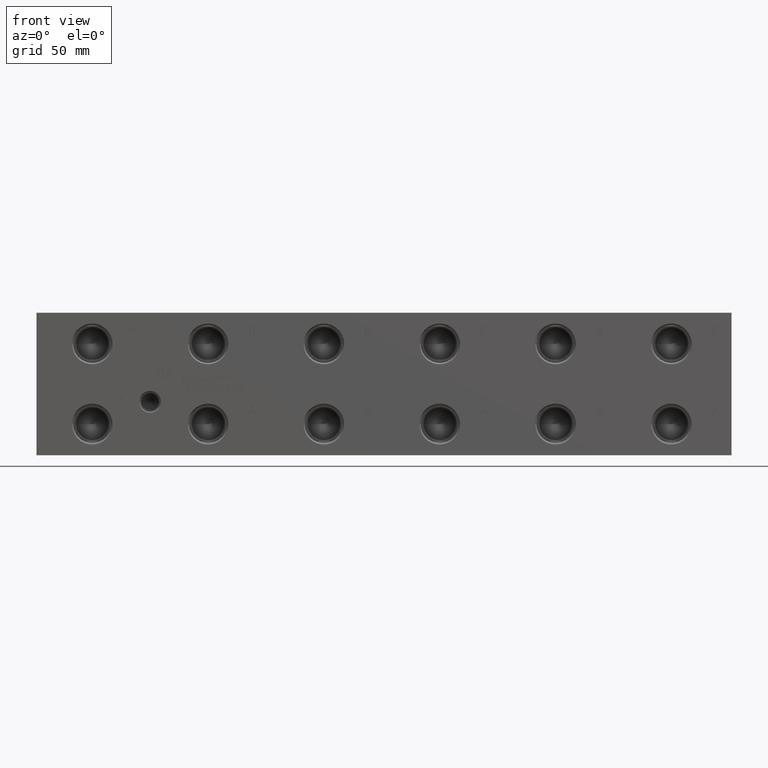
[diagram: clean part render]
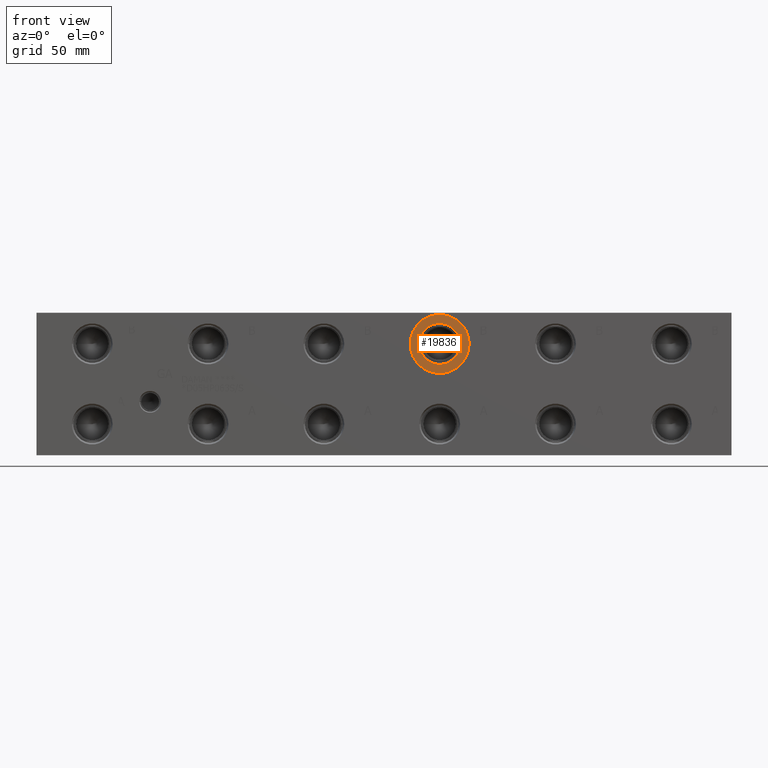
[diagram: same view with one face highlighted and labeled with its STEP entity id]
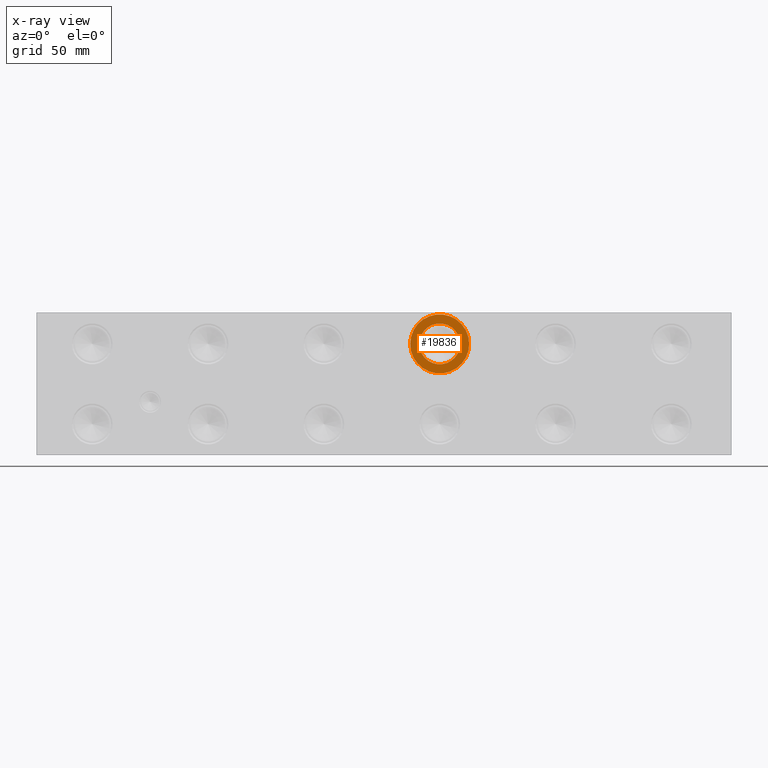
[diagram: x-ray of the same camera — body ghosted, the highlighted face saturated]
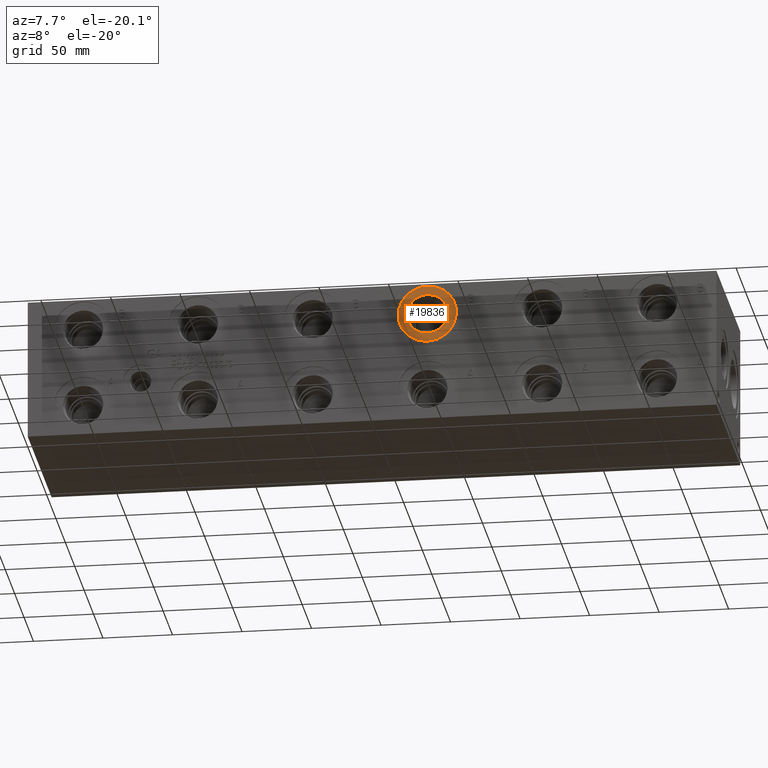
[diagram: same view with one face highlighted and labeled with its STEP entity id]
A machine part, front view. The second image highlights one B-rep face of the part: STEP entity #19836.
The next image is the same camera in x-ray: the body ghosted, the highlighted face saturated — about 0% of this face is hidden behind the body in this view.
A second angle (auxiliary view) of the same face is appended — the face is thin or edge-on in the first view.
In plain terms, the highlighted planar face has unit normal (0, 1, 0).
Its self-contained STEP definition (entity closure, byte-faithful):
#672=CIRCLE('',#20775,21.0185);
#673=CIRCLE('',#20776,21.0185);
#674=CIRCLE('',#20778,14.5923);
#675=CIRCLE('',#20779,14.5923);
#1793=FACE_BOUND('',#3778,.T.);
#2624=FACE_OUTER_BOUND('',#3777,.T.);
#3777=EDGE_LOOP('',(#16274,#16275));
#3778=EDGE_LOOP('',(#16276,#16277));
#8913=VERTEX_POINT('',#33502);
#8914=VERTEX_POINT('',#33504);
#8915=VERTEX_POINT('',#33508);
#8916=VERTEX_POINT('',#33509);
#11522=EDGE_CURVE('',#8913,#8914,#672,.T.);
#11523=EDGE_CURVE('',#8914,#8913,#673,.T.);
#11524=EDGE_CURVE('',#8915,#8916,#674,.T.);
#11525=EDGE_CURVE('',#8916,#8915,#675,.T.);
#16274=ORIENTED_EDGE('',*,*,#11523,.F.);
#16275=ORIENTED_EDGE('',*,*,#11522,.F.);
#16276=ORIENTED_EDGE('',*,*,#11524,.T.);
#16277=ORIENTED_EDGE('',*,*,#11525,.T.);
#18391=PLANE('',#20777);
#19836=ADVANCED_FACE('',(#2624,#1793),#18391,.F.);
#20775=AXIS2_PLACEMENT_3D('',#33505,#24232,#24233);
#20776=AXIS2_PLACEMENT_3D('',#33506,#24234,#24235);
#20777=AXIS2_PLACEMENT_3D('',#33507,#24236,#24237);
#20778=AXIS2_PLACEMENT_3D('',#33510,#24238,#24239);
#20779=AXIS2_PLACEMENT_3D('',#33511,#24240,#24241);
#24232=DIRECTION('center_axis',(0.,1.,0.));
#24233=DIRECTION('ref_axis',(1.,0.,0.));
#24234=DIRECTION('center_axis',(0.,1.,0.));
#24235=DIRECTION('ref_axis',(1.,0.,0.));
#24236=DIRECTION('center_axis',(0.,1.,0.));
#24237=DIRECTION('ref_axis',(0.,0.,1.));
#24238=DIRECTION('center_axis',(0.,1.,0.));
#24239=DIRECTION('ref_axis',(1.,0.,0.));
#24240=DIRECTION('center_axis',(0.,1.,0.));
#24241=DIRECTION('ref_axis',(1.,0.,0.));
#33502=CARTESIAN_POINT('',(266.3063,0.7874,79.375));
#33504=CARTESIAN_POINT('',(308.3433,0.7874,79.375));
#33505=CARTESIAN_POINT('Origin',(287.3248,0.7874,79.375));
#33506=CARTESIAN_POINT('Origin',(287.3248,0.7874,79.375));
#33507=CARTESIAN_POINT('Origin',(301.9171,0.7874,79.375));
#33508=CARTESIAN_POINT('',(301.9171,0.7874,79.375));
#33509=CARTESIAN_POINT('',(272.7325,0.787399999999995,79.375));
#33510=CARTESIAN_POINT('Origin',(287.3248,0.7874,79.375));
#33511=CARTESIAN_POINT('Origin',(287.3248,0.7874,79.375));